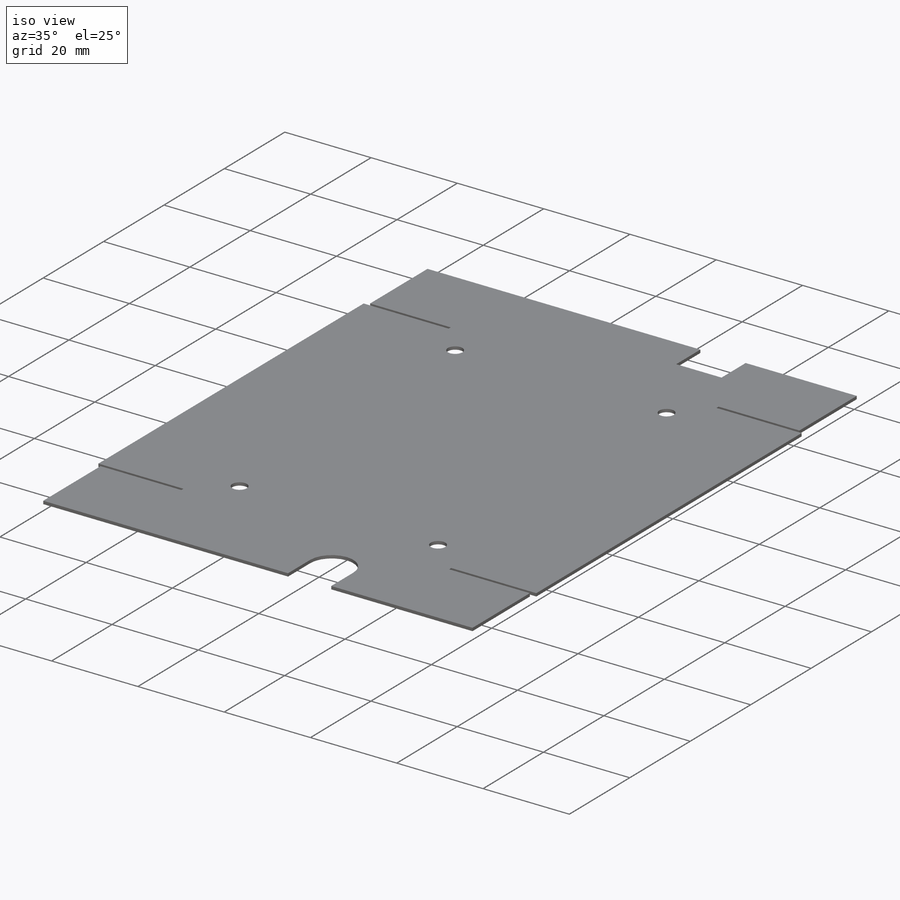
[diagram: iso view]
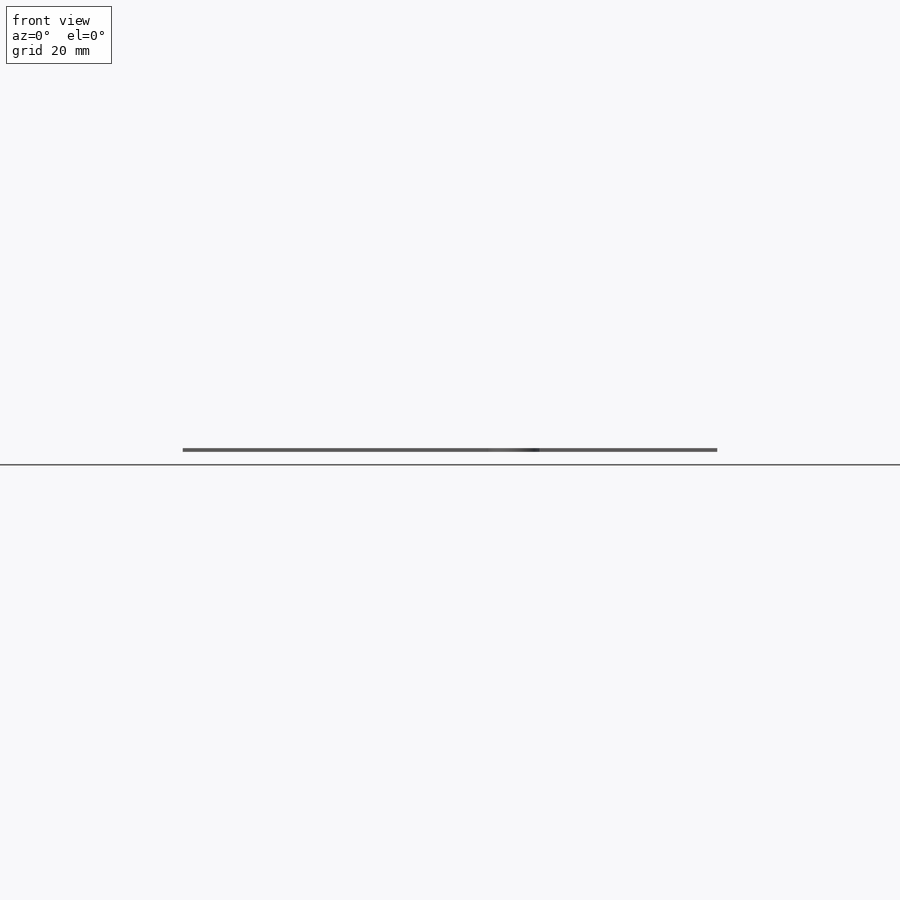
[diagram: front view]
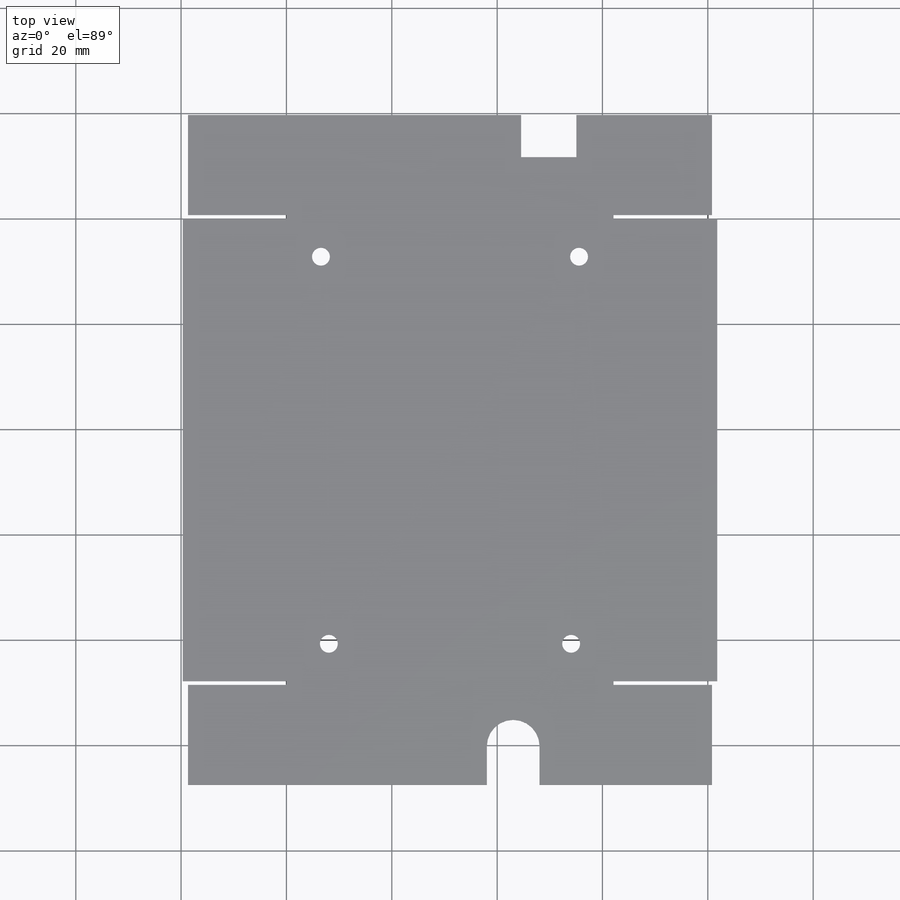
[diagram: top view]
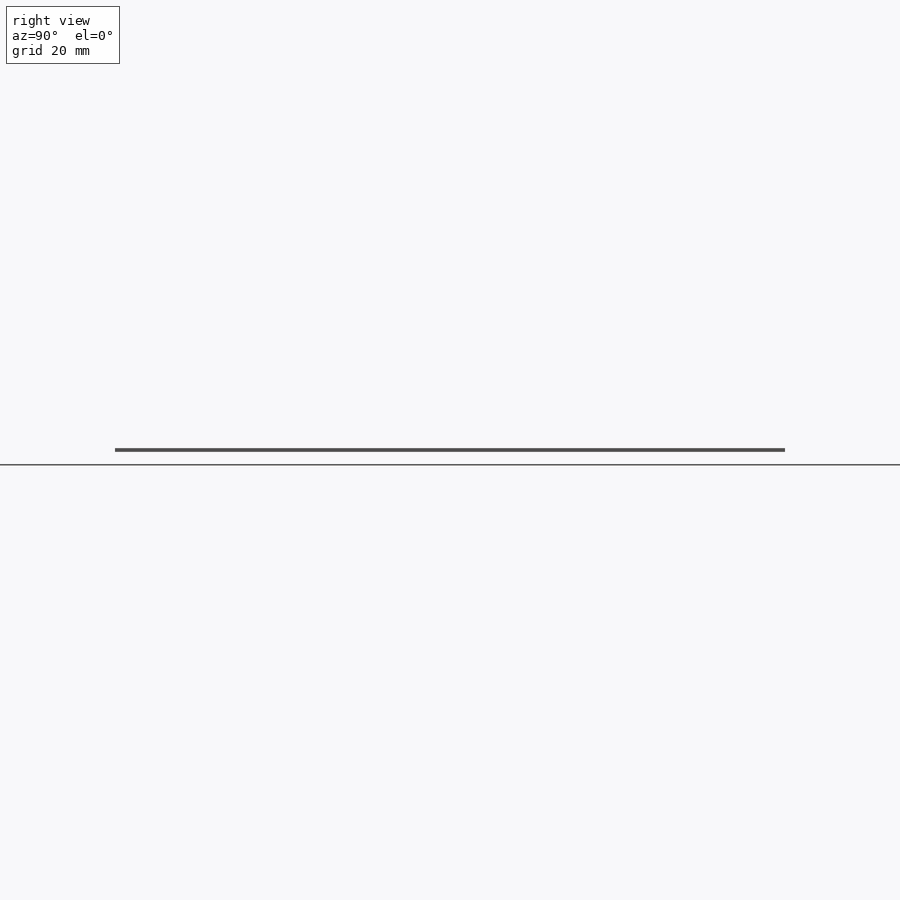
[diagram: right view]
SOLIDWORKS PART (.sldprt)
format: sldprt  version: not decoded by parser v0  size: 439,808 bytes
history: native  units: mm
features: sketch x14, sheet_metal_op x9, cut_extrude x3, material x1 + 8 further entries (+11 scaffold rows collapsed; 1 parser-record rows omitted)
feature tree (47):
  scaffold x11  (default folders/planes/origin — collapsed)
  material  "Material <not specified>"
  sketch  "Sketch1"  dims[c1.D1=61.4mm c1.D2=62.1mm c2.D1=61.4mm]
  sheet_metal_op  "Sheet-Metal1"
  sheet_metal_op  "Base-Flange1"
  sketch  "Sketch6"  dims[c1.D1=1.0mm c1.D4=90.0deg c1.D5=1.0 c1.D8=0.35mm c1.D9=0.35mm c2.D1=1.0mm c2.D2=500.0mm c2.D3=0.0mm c2.D6=10.0mm c2.D7=20.0mm c2.Edge-Flange2=0.0]
  sketch  "Sketch9"
  sheet_metal_op  "EdgeBend2"  Edge-Flange3=0
  sketch  "Sketch12"
  sheet_metal_op  "EdgeBend3"
  sketch  "Sketch13"  dims[D1=~8.186605mm D2=7.35mm D3=14.05mm]
  cut_extrude  "Cut-Extrude2"  [1 undecoded]
  sketch  "Sketch14"  dims[D1=3.4mm D2=3.4mm D3=73.5mm D4=49.0mm D5=46.0mm D6=7.2mm]
  cut_extrude  "Cut-Extrude3"  Depth=0 Edge-Flange4=0
  sketch  "Sketch17"
  sheet_metal_op  "EdgeBend5"  Edge-Flange5=0
  sketch  "Sketch20"
  sheet_metal_op  "EdgeBend6"  Edge-Flange6=0
  sketch  "Sketch23"
  sheet_metal_op  "EdgeBend7"  Edge-Flange7=0
  sketch  "Sketch28"
  sheet_metal_op  "EdgeBend8"  Edge-Flange8=0
  sketch  "Sketch31"
  sheet_metal_op  "EdgeBend9"
  sketch  "Sketch32"  dims[D1=8.0mm D2=10.5mm D3=~7.049399mm]
  cut_extrude  "Cut-Extrude5"  [1 undecoded]
  "Flat-Pattern1"
  sketch  "Bend-Lines1"
  sketch  "Bounding-Box1"
  "Flatten-<EdgeBend2>1"
  "Flatten-<EdgeBend3>1"
  "Flatten-<EdgeBend5>1"
  "Flatten-<EdgeBend6>1"
  "Flatten-<EdgeBend7>1"
  "Flatten-<EdgeBend8>1"
  "Flatten-<EdgeBend9>1"
  parser-record x1  (decoder bookkeeping rows leaked as tree rows — omitted from the tree; the rows remain in map.json)
decode coverage: 11 of 26 modeling features carry decoded parameters; 8 rows unclassified (native names shown)
note: ~ marks probable driven/reference dimensions
note: 2 parameter values undecoded
note: suppression state not decoded; provenance and decode notes live in map.json
